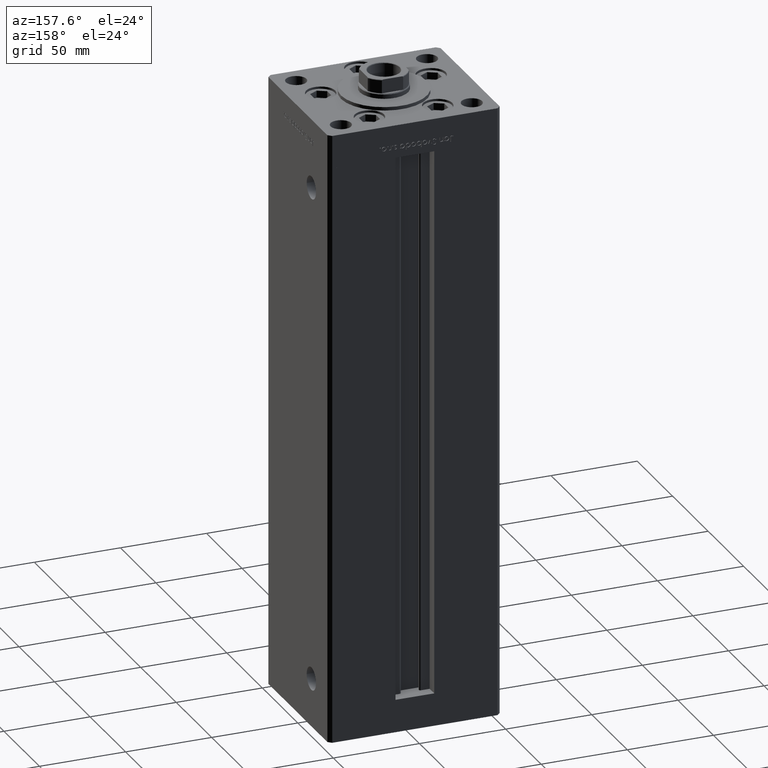
[diagram: clean part render]
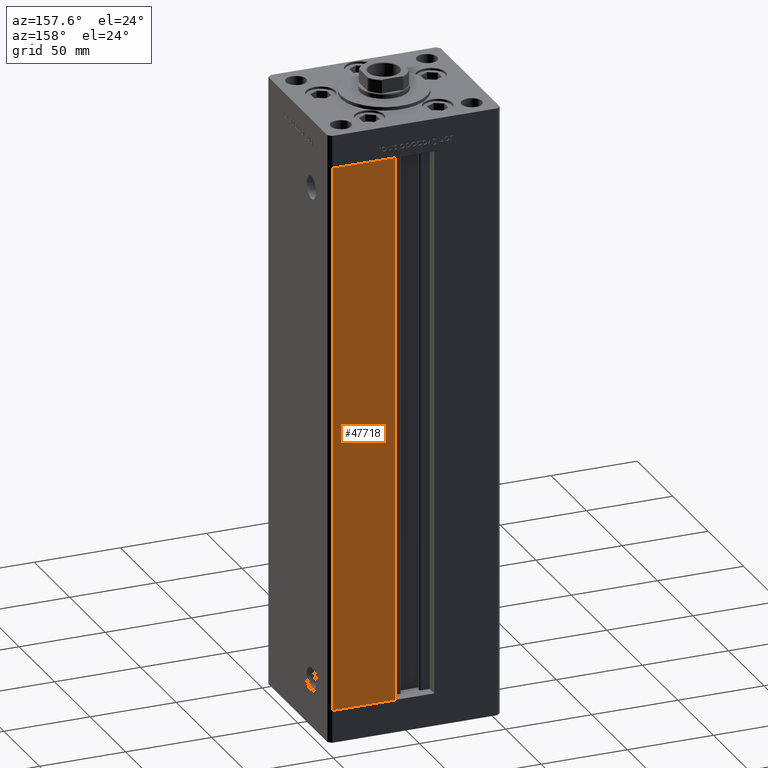
[diagram: same view with one face highlighted and labeled with its STEP entity id]
A machine part, auxiliary view. The second image highlights one B-rep face of the part: STEP entity #47718.
In plain terms, the highlighted planar face has unit normal (0, -1, 0).
Its self-contained STEP definition (entity closure, byte-faithful):
#232 = LINE ( 'NONE', #21080, #48001 ) ;
#247 = CARTESIAN_POINT ( 'NONE',  ( 11.24999999999999112, 43.50000000000000000, 318.5000000000000000 ) ) ;
#1097 = CARTESIAN_POINT ( 'NONE',  ( 11.24999999999999822, 43.50000000000000000, 0.000000000000000000 ) ) ;
#1986 = ORIENTED_EDGE ( 'NONE', *, *, #40128, .T. ) ;
#3504 = EDGE_LOOP ( 'NONE', ( #33475, #1986, #38670, #4957 ) ) ;
#4957 = ORIENTED_EDGE ( 'NONE', *, *, #8123, .T. ) ;
#6550 = DIRECTION ( 'NONE',  ( -0.000000000000000000, -0.000000000000000000, 1.000000000000000000 ) ) ;
#6729 = VERTEX_POINT ( 'NONE', #10066 ) ;
#6855 = VECTOR ( 'NONE', #49053, 1000.000000000000000 ) ;
#8123 = EDGE_CURVE ( 'NONE', #6729, #21772, #13104, .T. ) ;
#9497 = LINE ( 'NONE', #32981, #6855 ) ;
#10066 = CARTESIAN_POINT ( 'NONE',  ( 48.00000000000000711, 43.50000000000000000, 318.5000000000000000 ) ) ;
#12857 = DIRECTION ( 'NONE',  ( 0.000000000000000000, -1.000000000000000000, 0.000000000000000000 ) ) ;
#13104 = LINE ( 'NONE', #29996, #27695 ) ;
#13653 = PLANE ( 'NONE',  #50077 ) ;
#15116 = VERTEX_POINT ( 'NONE', #1097 ) ;
#16815 = FACE_OUTER_BOUND ( 'NONE', #3504, .T. ) ;
#21080 = CARTESIAN_POINT ( 'NONE',  ( -11.24999999999999822, 43.50000000000000000, 0.000000000000000000 ) ) ;
#21772 = VERTEX_POINT ( 'NONE', #23077 ) ;
#23077 = CARTESIAN_POINT ( 'NONE',  ( 48.00000000000000711, 43.50000000000000000, 0.000000000000000000 ) ) ;
#23180 = CARTESIAN_POINT ( 'NONE',  ( 11.24999999999999822, 43.50000000000000000, 0.000000000000000000 ) ) ;
#23429 = LINE ( 'NONE', #23180, #37244 ) ;
#27695 = VECTOR ( 'NONE', #42125, 1000.000000000000000 ) ;
#28506 = EDGE_CURVE ( 'NONE', #21772, #15116, #232, .T. ) ;
#28957 = DIRECTION ( 'NONE',  ( 0.000000000000000000, -0.000000000000000000, -1.000000000000000000 ) ) ;
#29996 = CARTESIAN_POINT ( 'NONE',  ( 48.00000000000000711, 43.50000000000000000, 318.5000000000000000 ) ) ;
#32981 = CARTESIAN_POINT ( 'NONE',  ( -11.24999999999999822, 43.50000000000000000, 318.5000000000000000 ) ) ;
#33475 = ORIENTED_EDGE ( 'NONE', *, *, #28506, .T. ) ;
#34108 = VERTEX_POINT ( 'NONE', #247 ) ;
#37244 = VECTOR ( 'NONE', #6550, 1000.000000000000000 ) ;
#38631 = EDGE_CURVE ( 'NONE', #34108, #6729, #9497, .T. ) ;
#38670 = ORIENTED_EDGE ( 'NONE', *, *, #38631, .T. ) ;
#40128 = EDGE_CURVE ( 'NONE', #15116, #34108, #23429, .T. ) ;
#40615 = DIRECTION ( 'NONE',  ( -1.000000000000000000, 0.000000000000000000, 0.000000000000000000 ) ) ;
#42125 = DIRECTION ( 'NONE',  ( -0.000000000000000000, -0.000000000000000000, -1.000000000000000000 ) ) ;
#47718 = ADVANCED_FACE ( 'NONE', ( #16815 ), #13653, .F. ) ;
#48001 = VECTOR ( 'NONE', #40615, 1000.000000000000000 ) ;
#48984 = CARTESIAN_POINT ( 'NONE',  ( -11.24999999999999822, 43.50000000000000000, 318.5000000000000000 ) ) ;
#49053 = DIRECTION ( 'NONE',  ( 1.000000000000000000, 0.000000000000000000, 0.000000000000000000 ) ) ;
#50077 = AXIS2_PLACEMENT_3D ( 'NONE', #48984, #12857, #28957 ) ;